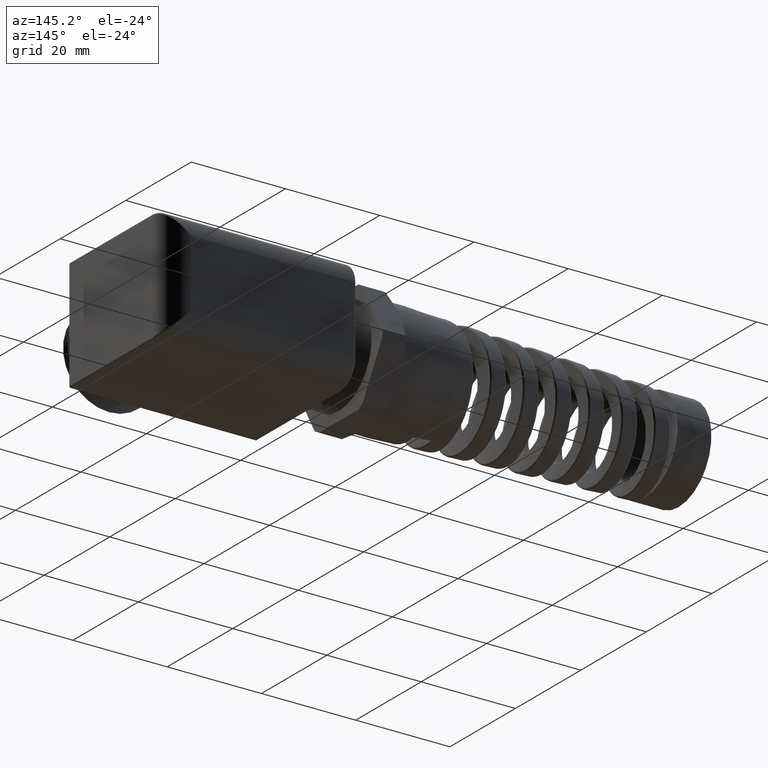
[diagram: clean part render]
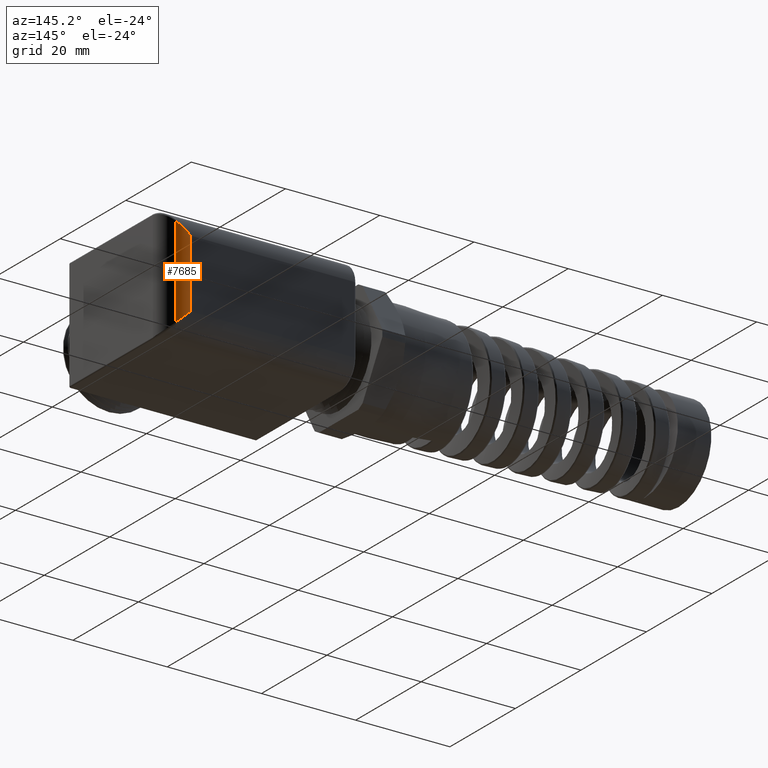
[diagram: same view with one face highlighted and labeled with its STEP entity id]
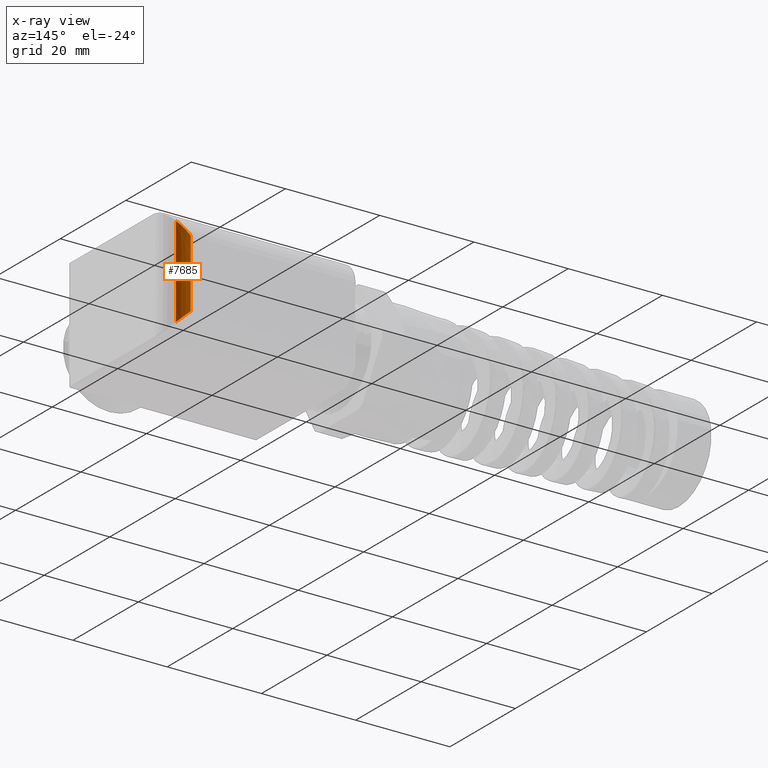
[diagram: x-ray of the same camera — body ghosted, the highlighted face saturated]
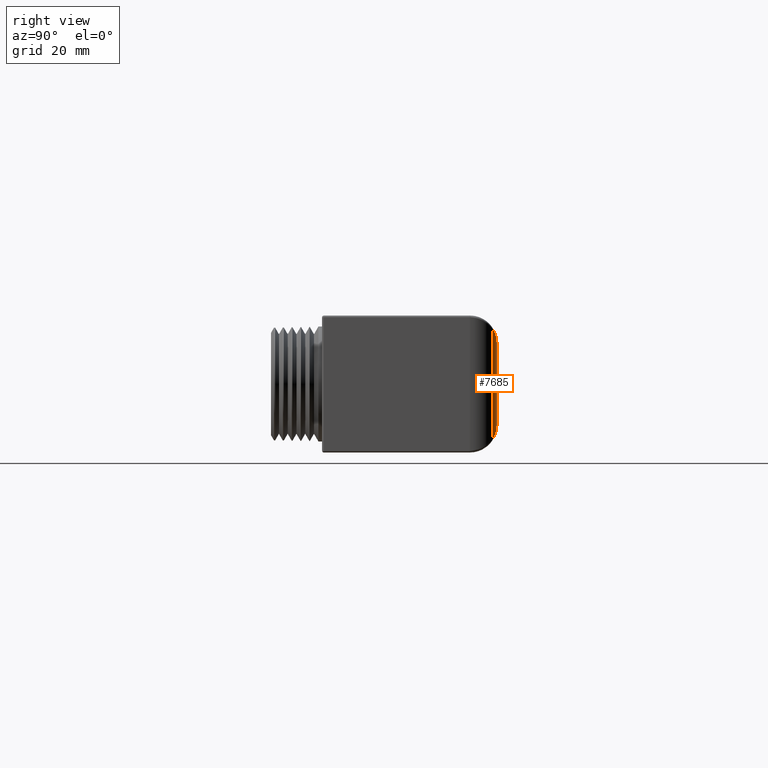
[diagram: same view with one face highlighted and labeled with its STEP entity id]
A machine part, auxiliary view. The second image highlights one B-rep face of the part: STEP entity #7685.
The next image is the same camera in x-ray: the body ghosted, the highlighted face saturated — about 0% of this face is hidden behind the body in this view.
A second angle (right view) of the same face is appended — the face is thin or edge-on in the first view.
In plain terms, the highlighted cylindrical surface (edge-blend (fillet) strip) has radius 4.7413 mm, axis along (0, 0, 1).
Its self-contained STEP definition (entity closure, byte-faithful):
#2619 = DIRECTION ( 'NONE',  ( 0.0000000000000000000, 0.0000000000000000000, 1.000000000000000000 ) ) ;
#2620 = VECTOR ( 'NONE', #2619, 39.37007874015748100 ) ;
#2621 = CARTESIAN_POINT ( 'NONE',  ( 1.485185488768730800, 0.5684435336938077300, -0.0001968503937009159900 ) ) ;
#2626 = CARTESIAN_POINT ( 'NONE',  ( 1.485185488768730600, 0.5684435336938078500, -0.3801446646714156100 ) ) ;
#2628 = LINE ( 'NONE', #2621, #2620 ) ;
#2845 = CARTESIAN_POINT ( 'NONE',  ( 1.485185488768730600, 0.5684435336938078500, 0.3801446646714153300 ) ) ;
#2873 = DIRECTION ( 'NONE',  ( 1.000000000000000000, 0.0000000000000000000, 0.0000000000000000000 ) ) ;
#2874 = DIRECTION ( 'NONE',  ( 0.0000000000000000000, 0.0000000000000000000, 1.000000000000000000 ) ) ;
#2875 = AXIS2_PLACEMENT_3D ( 'NONE', #2881, #2874, #2873 ) ;
#2876 = CYLINDRICAL_SURFACE ( 'NONE', #2875, 0.1866666666666666800 ) ;
#2877 = FACE_OUTER_BOUND ( 'NONE', #7688, .T. ) ;
#2881 = CARTESIAN_POINT ( 'NONE',  ( 1.381333333333333300, 0.4133333333333332700, 2.364919523357120700 ) ) ;
#2891 = CARTESIAN_POINT ( 'NONE',  ( 1.381333333333333300, 0.5999999999999999800, -0.2833333333333333800 ) ) ;
#2892 = CARTESIAN_POINT ( 'NONE',  ( 1.418586351816533100, 0.5999999999999999800, -0.3180607234447908000 ) ) ;
#2893 = CARTESIAN_POINT ( 'NONE',  ( 1.454230186120722300, 0.5891692815471379900, -0.3512880266097126400 ) ) ;
#2894 = CARTESIAN_POINT ( 'NONE',  ( 1.485185488768730600, 0.5684435336938078500, -0.3801446646714156100 ) ) ;
#2896 =( BOUNDED_CURVE ( )  B_SPLINE_CURVE ( 3, ( #2894, #2893, #2892, #2891 ),
 .UNSPECIFIED., .F., .T. ) 
 B_SPLINE_CURVE_WITH_KNOTS ( ( 4, 4 ),
 ( 0.9808085902230533300, 1.570796326794896800 ),
 .UNSPECIFIED. ) 
 CURVE ( )  GEOMETRIC_REPRESENTATION_ITEM ( )  RATIONAL_B_SPLINE_CURVE ( ( 1.000000000000000000, 0.9712026166911060800, 0.9712026166911060800, 1.000000000000000000 ) ) 
 REPRESENTATION_ITEM ( '' )  );
#3042 = CARTESIAN_POINT ( 'NONE',  ( 1.381333333333333300, 0.5999999999999999800, -0.2833333333333333800 ) ) ;
#3139 = DIRECTION ( 'NONE',  ( 0.0000000000000000000, 0.0000000000000000000, -1.000000000000000000 ) ) ;
#3140 = VECTOR ( 'NONE', #3139, 39.37007874015748100 ) ;
#3141 = CARTESIAN_POINT ( 'NONE',  ( 1.381333333333333300, 0.5999999999999999800, -0.4700000000000002000 ) ) ;
#3142 = LINE ( 'NONE', #3141, #3140 ) ;
#3147 = CARTESIAN_POINT ( 'NONE',  ( 1.381333333333333300, 0.5999999999999999800, 0.2833333333333332100 ) ) ;
#5697 = EDGE_CURVE ( 'NONE', #7845, #7656, #11140, .T. ) ;
#7529 = VERTEX_POINT ( 'NONE', #2626 ) ;
#7531 = EDGE_CURVE ( 'NONE', #7529, #7656, #2628, .T. ) ;
#7656 = VERTEX_POINT ( 'NONE', #2845 ) ;
#7685 = ADVANCED_FACE ( 'NONE', ( #2877 ), #2876, .T. ) ;
#7688 = EDGE_LOOP ( 'NONE', ( #7707, #7708, #7712, #7713 ) ) ;
#7707 = ORIENTED_EDGE ( 'NONE', *, *, #7531, .F. ) ;
#7708 = ORIENTED_EDGE ( 'NONE', *, *, #7710, .T. ) ;
#7710 = EDGE_CURVE ( 'NONE', #7529, #7805, #2896, .T. ) ;
#7712 = ORIENTED_EDGE ( 'NONE', *, *, #7847, .F. ) ;
#7713 = ORIENTED_EDGE ( 'NONE', *, *, #5697, .T. ) ;
#7805 = VERTEX_POINT ( 'NONE', #3042 ) ;
#7845 = VERTEX_POINT ( 'NONE', #3147 ) ;
#7847 = EDGE_CURVE ( 'NONE', #7845, #7805, #3142, .T. ) ;
#11140 =( BOUNDED_CURVE ( )  B_SPLINE_CURVE ( 3, ( #11242, #11241, #11240, #11239 ),
 .UNSPECIFIED., .F., .F. ) 
 B_SPLINE_CURVE_WITH_KNOTS ( ( 4, 4 ),
 ( 4.712388980384689700, 5.302376716956533000 ),
 .UNSPECIFIED. ) 
 CURVE ( )  GEOMETRIC_REPRESENTATION_ITEM ( )  RATIONAL_B_SPLINE_CURVE ( ( 1.000000000000000000, 0.9712026166911060800, 0.9712026166911060800, 1.000000000000000000 ) ) 
 REPRESENTATION_ITEM ( '' )  );
#11239 = CARTESIAN_POINT ( 'NONE',  ( 1.485185488768730600, 0.5684435336938078500, 0.3801446646714153300 ) ) ;
#11240 = CARTESIAN_POINT ( 'NONE',  ( 1.454230186120722300, 0.5891692815471381000, 0.3512880266097125900 ) ) ;
#11241 = CARTESIAN_POINT ( 'NONE',  ( 1.418586351816533100, 0.5999999999999999800, 0.3180607234447906900 ) ) ;
#11242 = CARTESIAN_POINT ( 'NONE',  ( 1.381333333333333300, 0.5999999999999999800, 0.2833333333333332100 ) ) ;